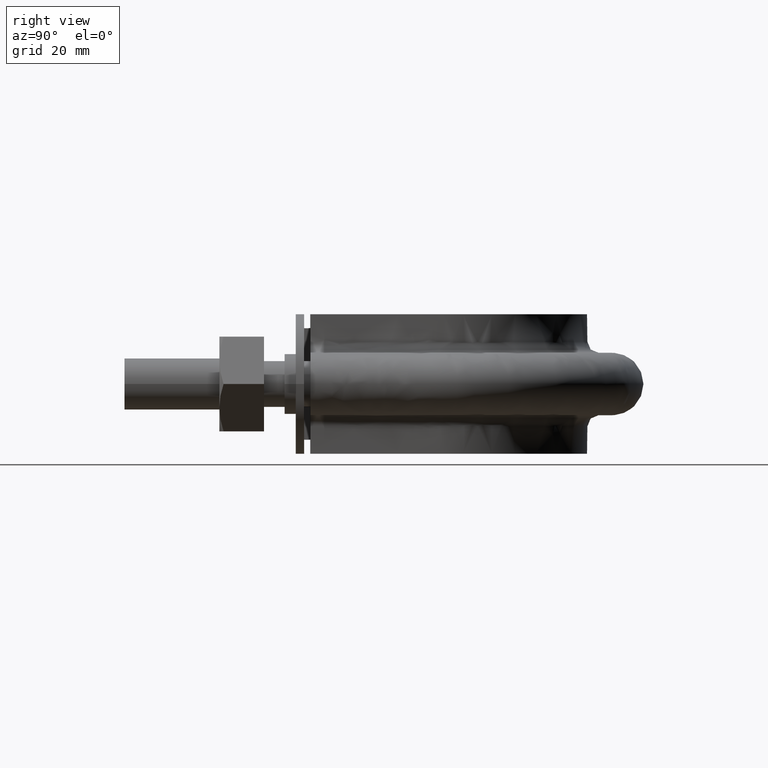
[diagram: clean part render]
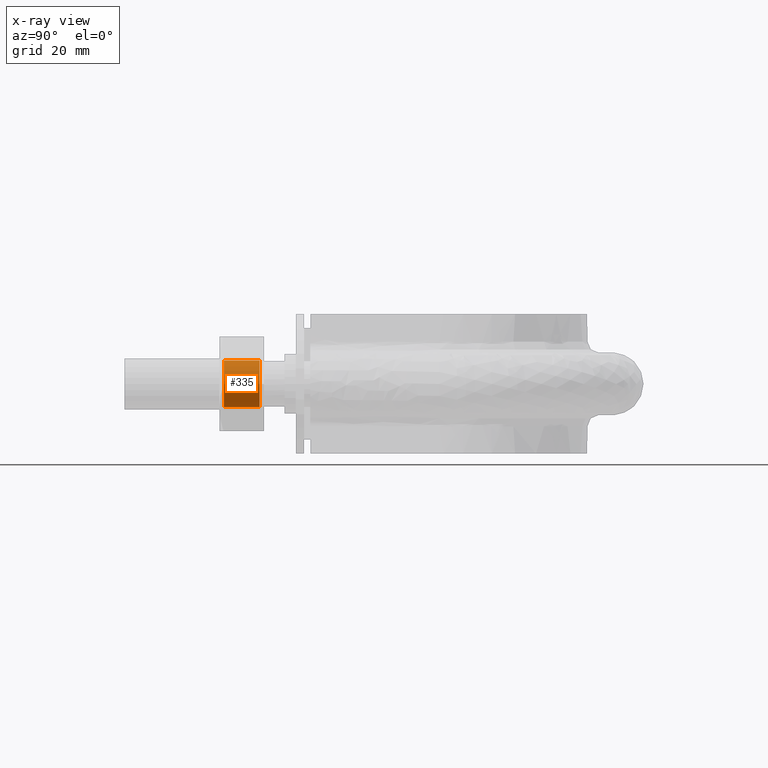
[diagram: x-ray — body ghosted, one internal face saturated and labeled with its STEP entity id]
A machine part, right view, then the same camera in x-ray: the body is ghosted and one INTERNAL B-rep face — a face not visible from any outside direction — is saturated and labeled: STEP entity #335.
In plain terms, the highlighted cylindrical surface (bore or boss wall) has radius 4.188 mm, axis along (0, 1, 0).
Its self-contained STEP definition (entity closure, byte-faithful):
#335 = ADVANCED_FACE( '', ( #538, #539 ), #540, .F. );
#538 = FACE_OUTER_BOUND( '', #1620, .T. );
#539 = FACE_OUTER_BOUND( '', #1621, .T. );
#540 = CYLINDRICAL_SURFACE( '', #1622, 4.18800000000000 );
#1620 = EDGE_LOOP( '', ( #2206 ) );
#1621 = EDGE_LOOP( '', ( #2207 ) );
#1622 = AXIS2_PLACEMENT_3D( '', #2208, #2209, #2210 );
#2206 = ORIENTED_EDGE( '', *, *, #2685, .F. );
#2207 = ORIENTED_EDGE( '', *, *, #2686, .T. );
#2208 = CARTESIAN_POINT( '', ( -31.0000000000000, 25.0000000000000, 9.89822373370637E-015 ) );
#2209 = DIRECTION( '', ( 2.44921270764475E-016, 1.00000000000000, 3.06151588455594E-016 ) );
#2210 = DIRECTION( '', ( 0.866025403788584, -5.90322481846188E-017, -0.499999999992820 ) );
#2685 = EDGE_CURVE( '', #3019, #3019, #3020, .F. );
#2686 = EDGE_CURVE( '', #3021, #3021, #3022, .T. );
#3019 = VERTEX_POINT( '', #3739 );
#3020 = CIRCLE( '', #3740, 4.18800000000000 );
#3021 = VERTEX_POINT( '', #3741 );
#3022 = CIRCLE( '', #3742, 4.18800000000000 );
#3739 = CARTESIAN_POINT( '', ( -31.0000000000000, 17.8120000000003, -4.18799999999999 ) );
#3740 = AXIS2_PLACEMENT_3D( '', #4241, #4242, #4243 );
#3741 = CARTESIAN_POINT( '', ( -31.0000000000000, 24.1880000000000, 4.18800000000001 ) );
#3742 = AXIS2_PLACEMENT_3D( '', #4244, #4245, #4246 );
#4241 = CARTESIAN_POINT( '', ( -31.0000000000000, 17.8120000000003, 7.69760611588764E-015 ) );
#4242 = DIRECTION( '', ( -2.44921270764475E-016, -1.00000000000000, -3.06151588455594E-016 ) );
#4243 = DIRECTION( '', ( 0.000000000000000, 3.06151588455594E-016, -1.00000000000000 ) );
#4244 = CARTESIAN_POINT( '', ( -31.0000000000000, 24.1880000000000, 9.64962864388043E-015 ) );
#4245 = DIRECTION( '', ( 2.44921270764475E-016, 1.00000000000000, 3.06151588455594E-016 ) );
#4246 = DIRECTION( '', ( 0.000000000000000, -3.06151588455594E-016, 1.00000000000000 ) );